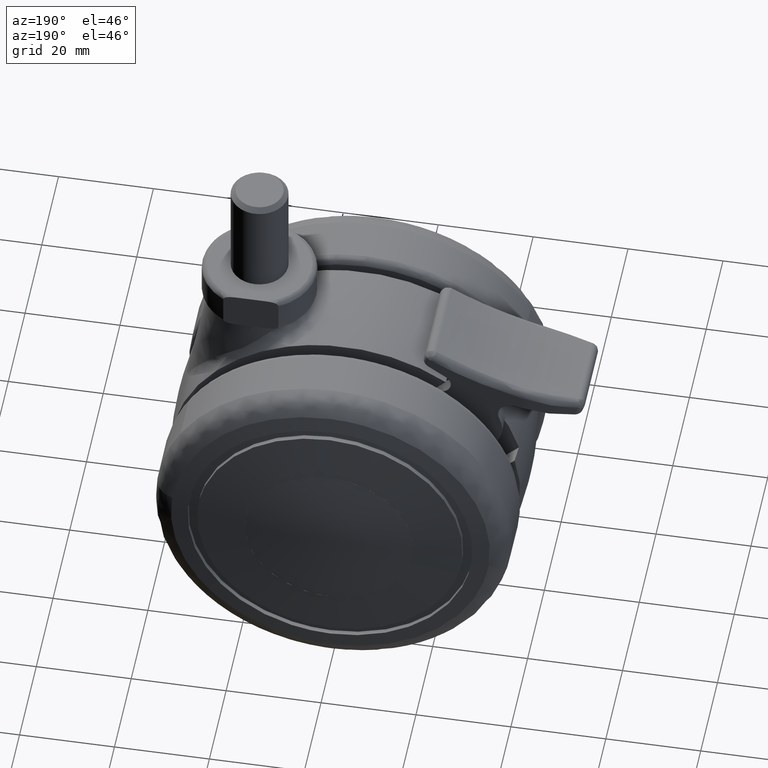
[diagram: clean part render]
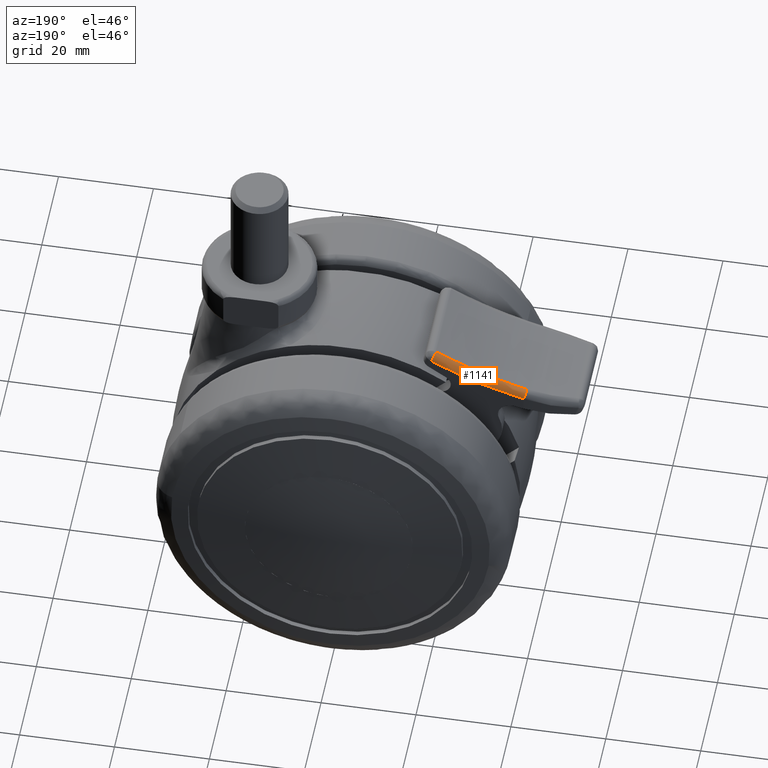
[diagram: same view with one face highlighted and labeled with its STEP entity id]
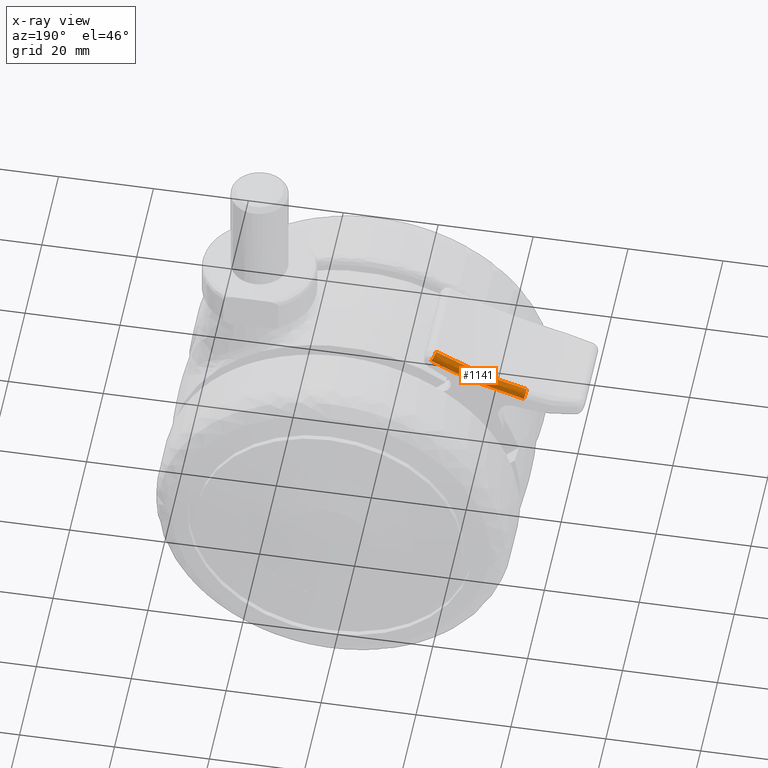
[diagram: x-ray of the same camera — body ghosted, the highlighted face saturated]
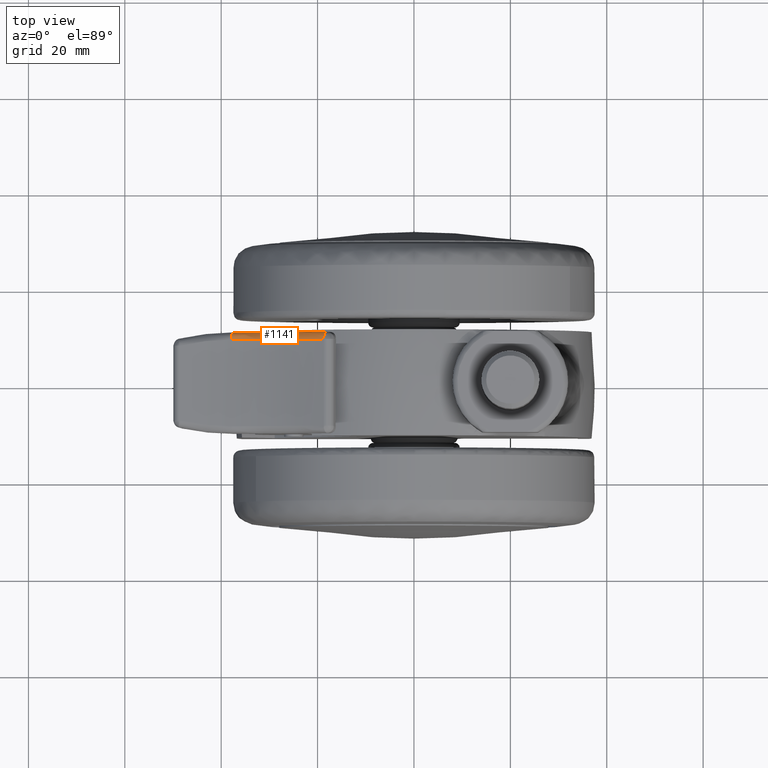
[diagram: same view with one face highlighted and labeled with its STEP entity id]
A machine part, auxiliary view. The second image highlights one B-rep face of the part: STEP entity #1141.
The next image is the same camera in x-ray: the body ghosted, the highlighted face saturated — about 0% of this face is hidden behind the body in this view.
A second angle (top view) of the same face is appended — the face is thin or edge-on in the first view.
In plain terms, the highlighted face is a freeform B-spline surface patch.
Its self-contained STEP definition (entity closure, byte-faithful):
#983=CARTESIAN_POINT('',(-37.894735153372451,9.000000000000119,29.055465245256698));
#984=VERTEX_POINT('',#983);
#985=CARTESIAN_POINT('',(-37.517434999999800,10.500000000000000,27.603692331105250));
#986=VERTEX_POINT('',#985);
#987=CARTESIAN_POINT('',(-37.894735153372473,9.000000000000119,29.055465245256730));
#988=CARTESIAN_POINT('',(-37.894735153372466,10.499999999999764,29.055465245256741));
#989=CARTESIAN_POINT('',(-37.517434999999800,10.500000000000000,27.603692331105250));
#997=(BOUNDED_CURVE()B_SPLINE_CURVE(2,(#987,#988,#989),.UNSPECIFIED.,.F.,.U.)CURVE()GEOMETRIC_REPRESENTATION_ITEM()QUASI_UNIFORM_CURVE()RATIONAL_B_SPLINE_CURVE((1.0,0.707106781186631,1.0))REPRESENTATION_ITEM(''));
#998=EDGE_CURVE('',#984,#986,#997,.T.);
#1078=CARTESIAN_POINT('',(-17.040439717901808,10.496349356940861,35.912845627987174));
#1079=CARTESIAN_POINT('',(-27.154543302583907,10.496349356940861,30.040062059037524));
#1080=CARTESIAN_POINT('',(-38.510998051527601,10.496349356940859,27.244420146238546));
#1081=CARTESIAN_POINT('',(-17.904418436047454,10.616610598783843,37.400789147051469));
#1082=CARTESIAN_POINT('',(-27.805271255967593,10.616610598783845,31.651830252911047));
#1083=CARTESIAN_POINT('',(-38.922280893446860,10.616610598783843,28.915133037574719));
#1084=CARTESIAN_POINT('',(-17.844354788416595,8.895974057438858,37.297347576852218));
#1085=CARTESIAN_POINT('',(-27.760032763774763,8.895974057438856,31.539780413226040));
#1086=CARTESIAN_POINT('',(-38.893688583040557,8.895974057438858,28.798985372950568));
#1094=(BOUNDED_SURFACE()B_SPLINE_SURFACE(2,2,((#1078,#1081,#1084),(#1079,#1082,#1085),(#1080,#1083,#1086)),.UNSPECIFIED.,.F.,.F.,.U.)B_SPLINE_SURFACE_WITH_KNOTS((3,3),(3,3),(24.137542517757421,47.484636513614653),(0.335485083200038,3.069079506061971),.UNSPECIFIED.)GEOMETRIC_REPRESENTATION_ITEM()RATIONAL_B_SPLINE_SURFACE(((0.876472727036682,0.576762246023070,0.881354310275558),(0.867579809163334,0.570910267828983,0.872411862602256),(0.876416722563218,0.576725392319690,0.881297993880809)))REPRESENTATION_ITEM('')SURFACE());
#1095=CARTESIAN_POINT('',(-18.741307892591049,9.000000000000119,36.788391461460762));
#1096=VERTEX_POINT('',#1095);
#1097=CARTESIAN_POINT('',(-18.004880978077150,10.500000000000121,35.481610913863150));
#1098=VERTEX_POINT('',#1097);
#1099=CARTESIAN_POINT('',(-18.741307892591070,9.000000000000119,36.788391461460762));
#1100=CARTESIAN_POINT('',(-18.741307892591070,10.500000000000119,36.788391461460762));
#1101=CARTESIAN_POINT('',(-18.004880978077150,10.500000000000121,35.481610913863150));
#1109=(BOUNDED_CURVE()B_SPLINE_CURVE(2,(#1099,#1100,#1101),.UNSPECIFIED.,.F.,.U.)CURVE()GEOMETRIC_REPRESENTATION_ITEM()QUASI_UNIFORM_CURVE()RATIONAL_B_SPLINE_CURVE((1.0,0.707106781186548,1.0))REPRESENTATION_ITEM(''));
#1110=EDGE_CURVE('',#1096,#1098,#1109,.T.);
#1111=ORIENTED_EDGE('',*,*,#1110,.T.);
#1112=CARTESIAN_POINT('',(-37.517434999999800,10.500000000000000,27.603692331105250));
#1113=CARTESIAN_POINT('',(-27.248358178489518,10.500000000000123,30.272514859752377));
#1114=CARTESIAN_POINT('',(-18.004880978077150,10.500000000000121,35.481610913863150));
#1122=(BOUNDED_CURVE()B_SPLINE_CURVE(2,(#1112,#1113,#1114),.UNSPECIFIED.,.F.,.U.)CURVE()GEOMETRIC_REPRESENTATION_ITEM()QUASI_UNIFORM_CURVE()RATIONAL_B_SPLINE_CURVE((1.0,0.991631942421427,1.0))REPRESENTATION_ITEM(''));
#1123=EDGE_CURVE('',#986,#1098,#1122,.T.);
#1124=ORIENTED_EDGE('',*,*,#1123,.F.);
#1125=ORIENTED_EDGE('',*,*,#998,.F.);
#1126=CARTESIAN_POINT('',(-18.741307892591060,9.000000000000119,36.788391461460783));
#1127=CARTESIAN_POINT('',(-27.814659745755883,9.000000000000119,31.675168340861624));
#1128=CARTESIAN_POINT('',(-37.894735153372473,9.000000000000119,29.055465245256709));
#1136=(BOUNDED_CURVE()B_SPLINE_CURVE(2,(#1126,#1127,#1128),.UNSPECIFIED.,.F.,.U.)CURVE()GEOMETRIC_REPRESENTATION_ITEM()QUASI_UNIFORM_CURVE()RATIONAL_B_SPLINE_CURVE((1.0,0.991631942421429,1.0))REPRESENTATION_ITEM(''));
#1137=EDGE_CURVE('',#1096,#984,#1136,.T.);
#1138=ORIENTED_EDGE('',*,*,#1137,.F.);
#1139=EDGE_LOOP('',(#1111,#1124,#1125,#1138));
#1140=FACE_OUTER_BOUND('',#1139,.T.);
#1141=ADVANCED_FACE('',(#1140),#1094,.T.);